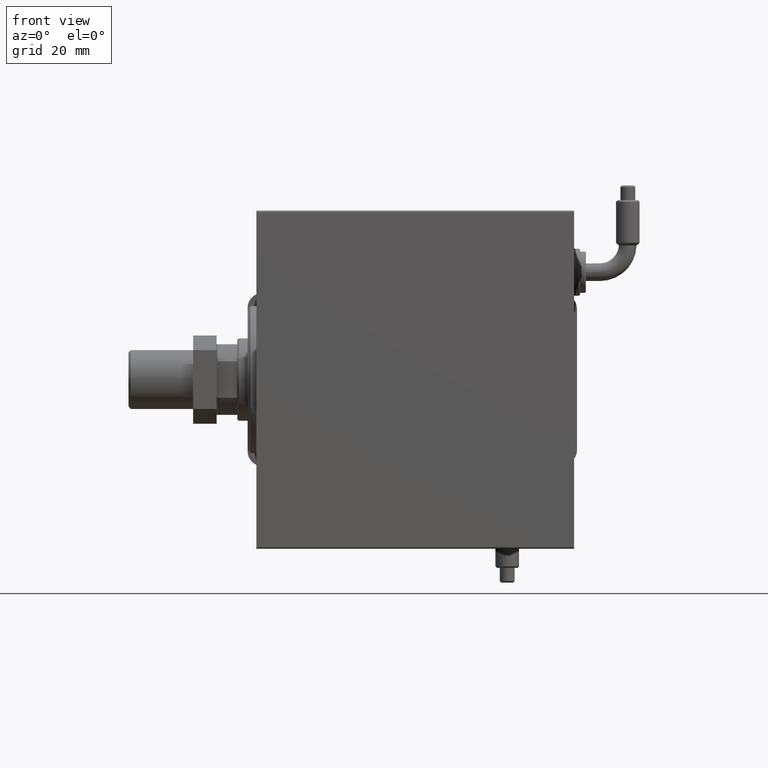
[diagram: clean part render]
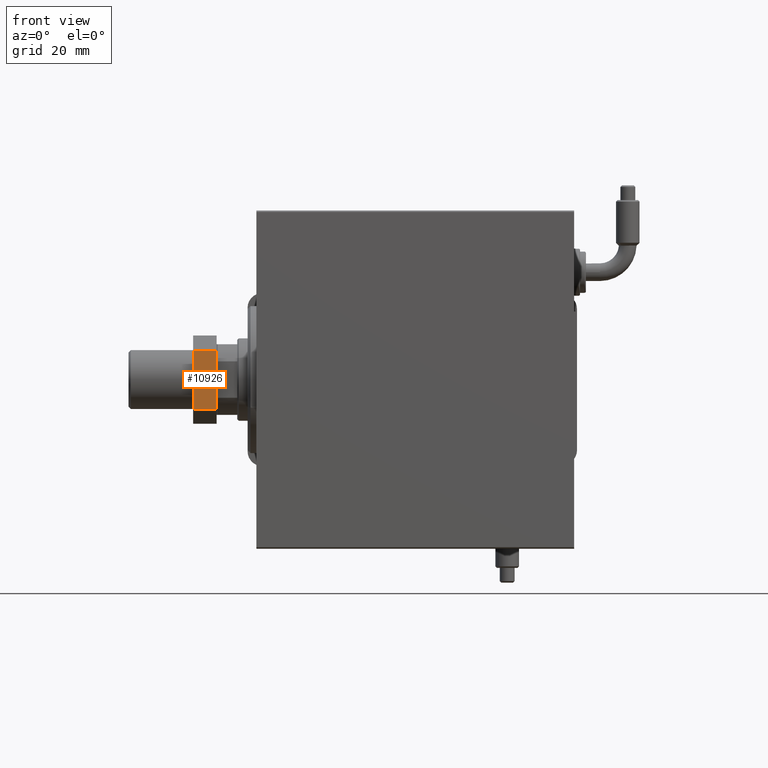
[diagram: same view with one face highlighted and labeled with its STEP entity id]
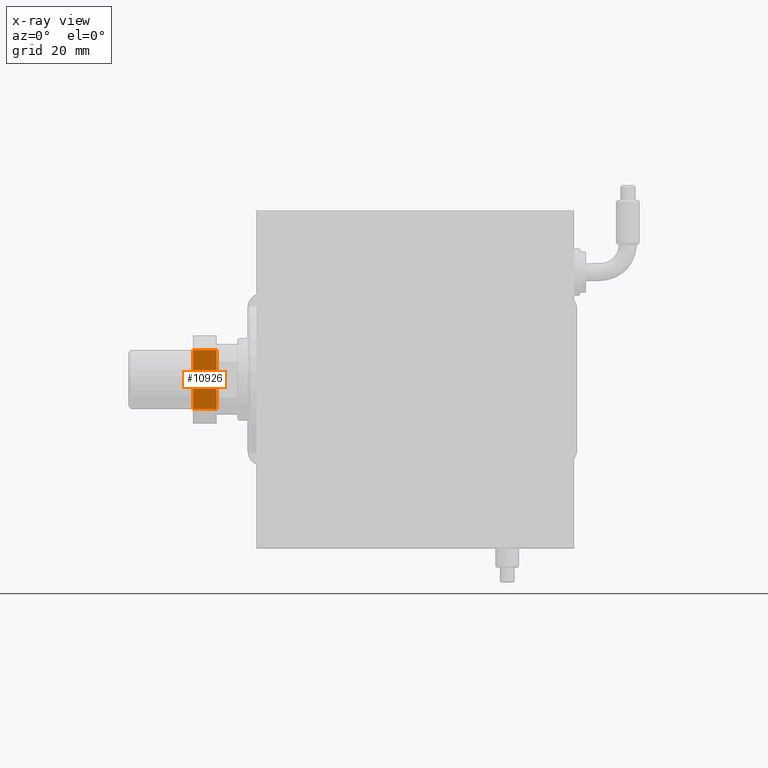
[diagram: x-ray of the same camera — body ghosted, the highlighted face saturated]
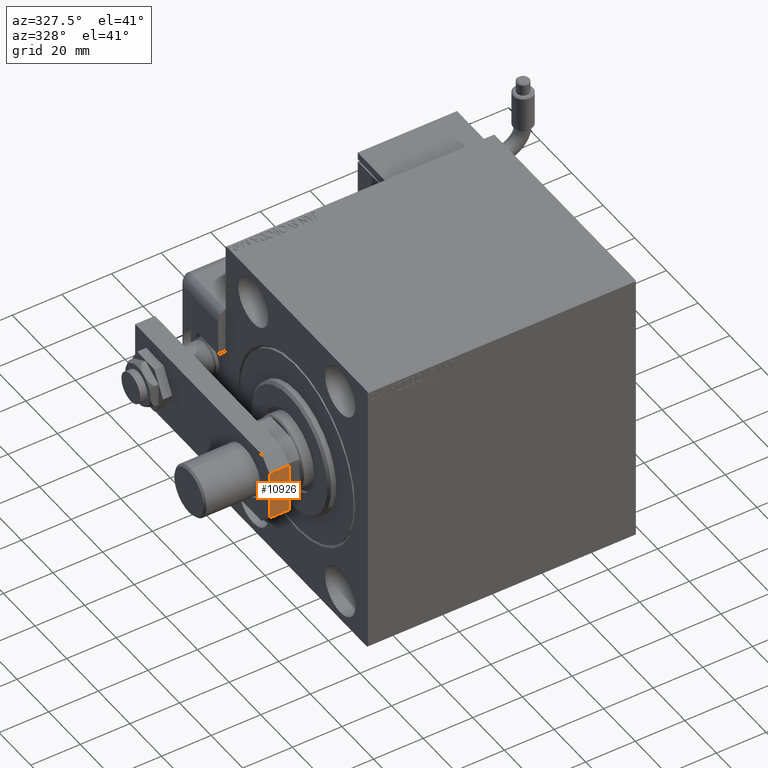
[diagram: same view with one face highlighted and labeled with its STEP entity id]
A machine part, front view. The second image highlights one B-rep face of the part: STEP entity #10926.
The next image is the same camera in x-ray: the body ghosted, the highlighted face saturated — about 0% of this face is hidden behind the body in this view.
A second angle (auxiliary view) of the same face is appended — the face is thin or edge-on in the first view.
In plain terms, the highlighted planar face has unit normal (0, 1, 0).
Its self-contained STEP definition (entity closure, byte-faithful):
#1980 = VECTOR ( 'NONE', #60020, 1000.000000000000000 ) ;
#3267 = LINE ( 'NONE', #22946, #52721 ) ;
#3516 = EDGE_CURVE ( 'NONE', #60481, #21788, #39050, .T. ) ;
#3518 = EDGE_CURVE ( 'NONE', #21788, #23792, #15558, .T. ) ;
#8055 = CARTESIAN_POINT ( 'NONE',  ( -15.00000000000000888, 9.629649721936179265E-32, 8.000000000000000000 ) ) ;
#9242 = EDGE_LOOP ( 'NONE', ( #59995, #34919, #17658, #55881 ) ) ;
#10926 = ADVANCED_FACE ( 'NONE', ( #32435 ), #37753, .F. ) ;
#13516 = VERTEX_POINT ( 'NONE', #61723 ) ;
#13961 = DIRECTION ( 'NONE',  ( 0.000000000000000000, -0.000000000000000000, 1.000000000000000000 ) ) ;
#15357 = VECTOR ( 'NONE', #58428, 1000.000000000000000 ) ;
#15558 = LINE ( 'NONE', #53411, #23373 ) ;
#17658 = ORIENTED_EDGE ( 'NONE', *, *, #3518, .T. ) ;
#17781 = LINE ( 'NONE', #54695, #1980 ) ;
#20669 = CARTESIAN_POINT ( 'NONE',  ( -9.999999999999989342, 9.629649721936179265E-32, 8.000000000000000000 ) ) ;
#21788 = VERTEX_POINT ( 'NONE', #27111 ) ;
#22946 = CARTESIAN_POINT ( 'NONE',  ( 10.00000000000000355, 9.629649721936179265E-32, 8.000000000000000000 ) ) ;
#23373 = VECTOR ( 'NONE', #38445, 1000.000000000000000 ) ;
#23792 = VERTEX_POINT ( 'NONE', #43070 ) ;
#27111 = CARTESIAN_POINT ( 'NONE',  ( -9.999999999999989342, 9.629649721936179265E-32, 0.000000000000000000 ) ) ;
#32337 = DIRECTION ( 'NONE',  ( 0.000000000000000000, 0.000000000000000000, 1.000000000000000000 ) ) ;
#32435 = FACE_OUTER_BOUND ( 'NONE', #9242, .T. ) ;
#34919 = ORIENTED_EDGE ( 'NONE', *, *, #3516, .T. ) ;
#36268 = EDGE_CURVE ( 'NONE', #23792, #13516, #3267, .T. ) ;
#37753 = PLANE ( 'NONE',  #58688 ) ;
#38445 = DIRECTION ( 'NONE',  ( 1.000000000000000000, 0.000000000000000000, 0.000000000000000000 ) ) ;
#39050 = LINE ( 'NONE', #48121, #15357 ) ;
#43070 = CARTESIAN_POINT ( 'NONE',  ( 10.00000000000000355, 9.629649721936179265E-32, 0.000000000000000000 ) ) ;
#48121 = CARTESIAN_POINT ( 'NONE',  ( -9.999999999999989342, 9.629649721936179265E-32, 8.000000000000000000 ) ) ;
#52721 = VECTOR ( 'NONE', #32337, 1000.000000000000000 ) ;
#53411 = CARTESIAN_POINT ( 'NONE',  ( -15.00000000000000888, 9.629649721936179265E-32, 0.000000000000000000 ) ) ;
#54235 = EDGE_CURVE ( 'NONE', #60481, #13516, #17781, .T. ) ;
#54695 = CARTESIAN_POINT ( 'NONE',  ( -15.00000000000000888, 9.629649721936179265E-32, 8.000000000000000000 ) ) ;
#55881 = ORIENTED_EDGE ( 'NONE', *, *, #36268, .T. ) ;
#56814 = DIRECTION ( 'NONE',  ( 0.000000000000000000, 1.000000000000000000, 0.000000000000000000 ) ) ;
#58428 = DIRECTION ( 'NONE',  ( 0.000000000000000000, 0.000000000000000000, -1.000000000000000000 ) ) ;
#58688 = AXIS2_PLACEMENT_3D ( 'NONE', #8055, #56814, #13961 ) ;
#59995 = ORIENTED_EDGE ( 'NONE', *, *, #54235, .F. ) ;
#60020 = DIRECTION ( 'NONE',  ( 1.000000000000000000, 0.000000000000000000, 0.000000000000000000 ) ) ;
#60481 = VERTEX_POINT ( 'NONE', #20669 ) ;
#61723 = CARTESIAN_POINT ( 'NONE',  ( 10.00000000000000355, 9.629649721936179265E-32, 8.000000000000000000 ) ) ;